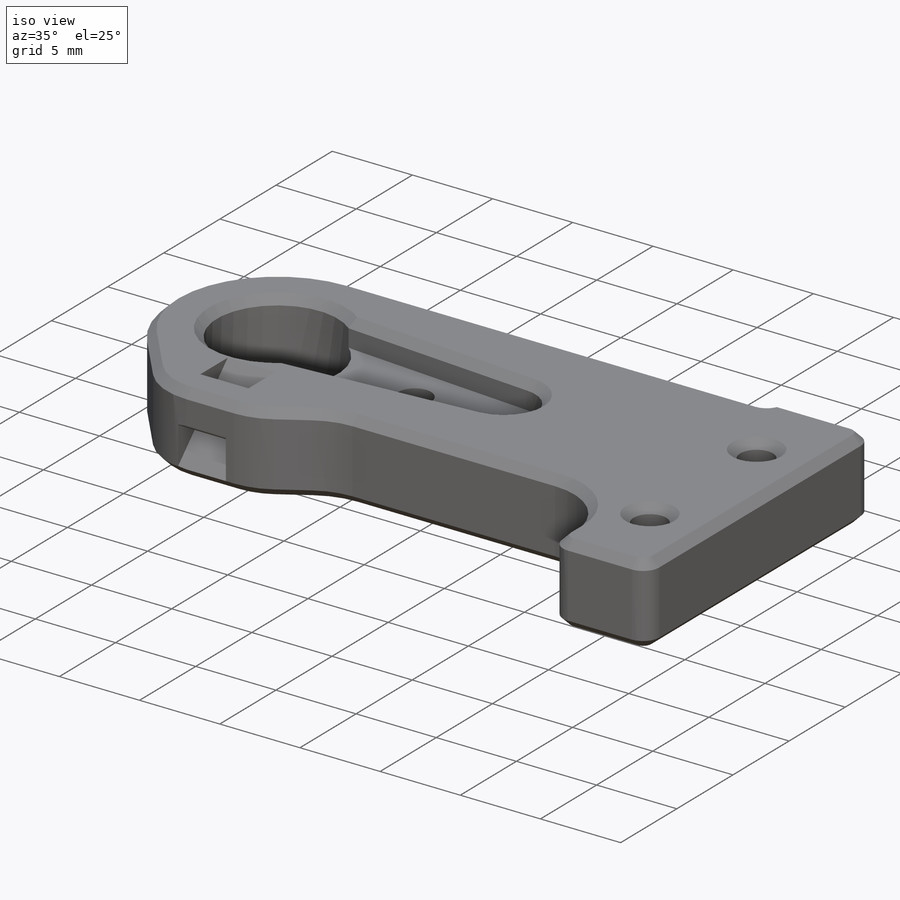
[diagram: iso view]
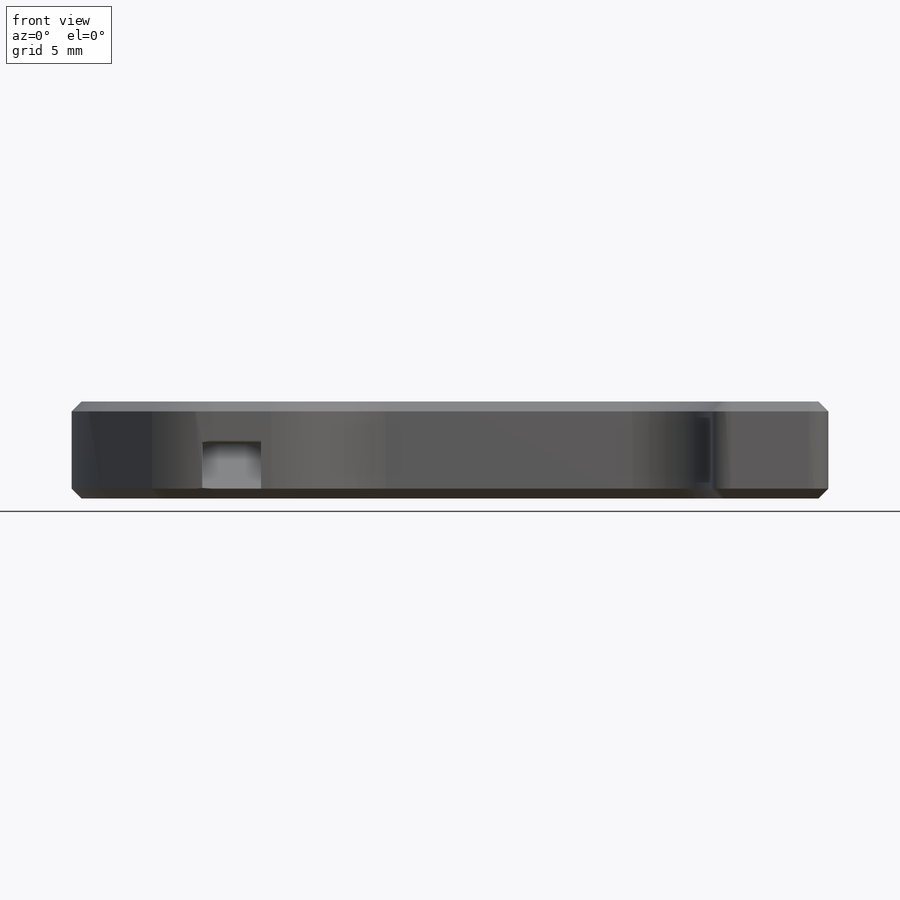
[diagram: front view]
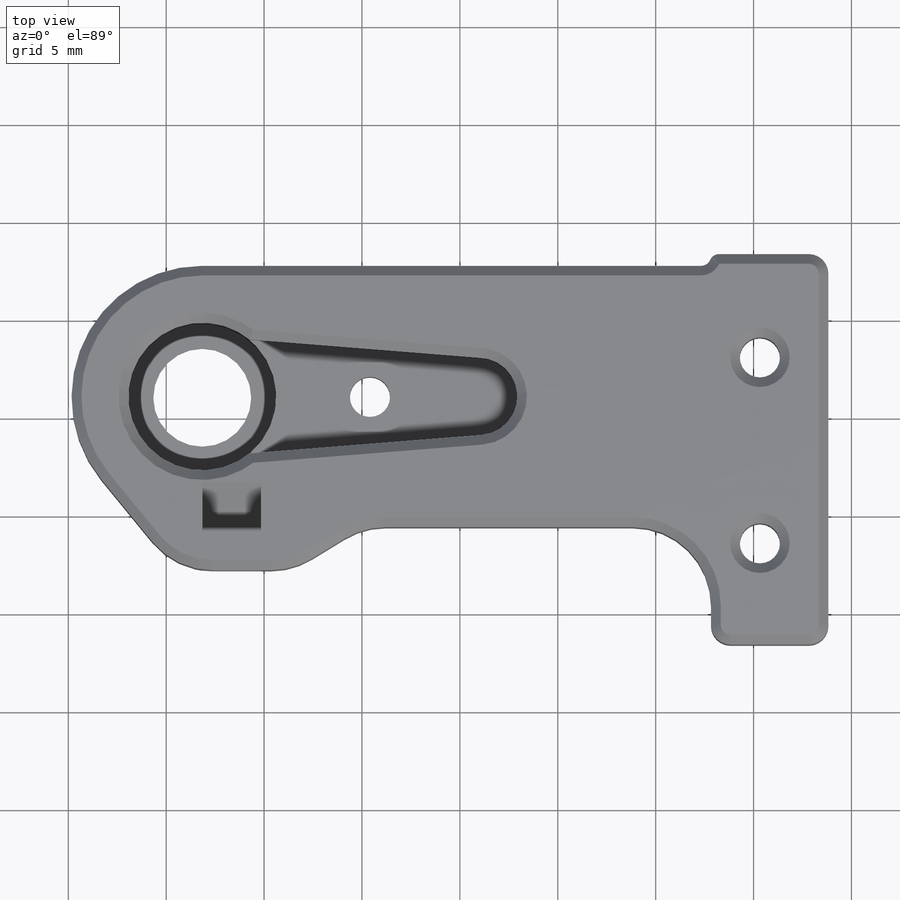
[diagram: top view]
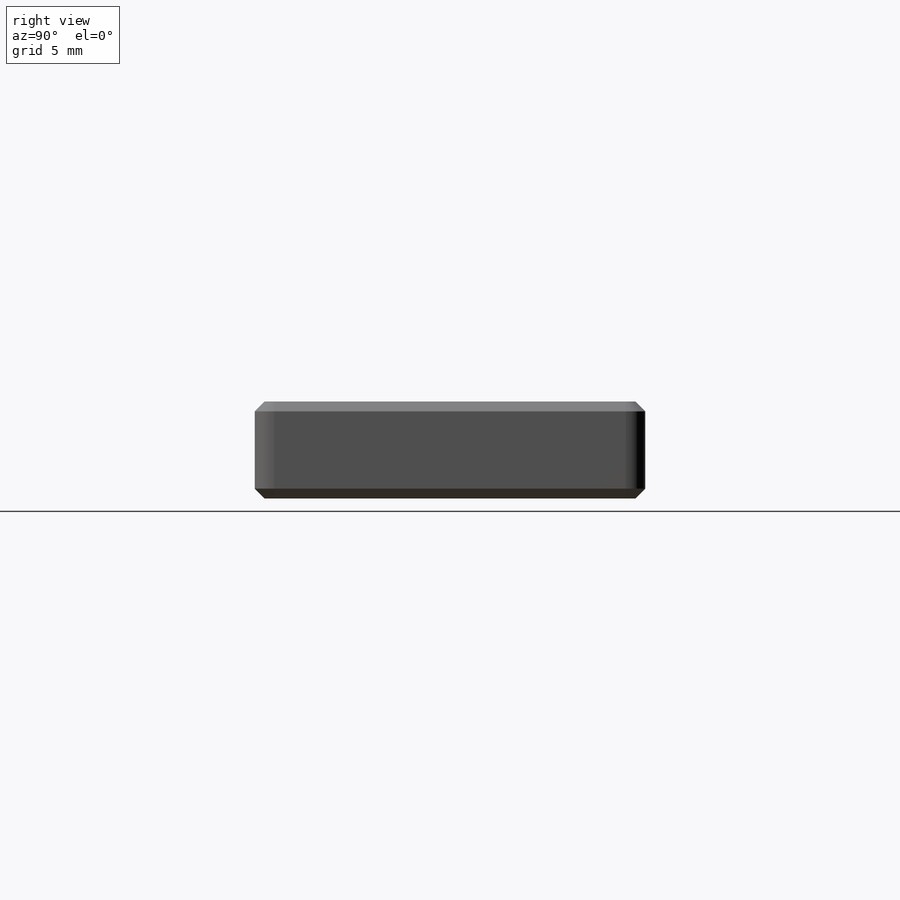
[diagram: right view]
SOLIDWORKS PART (.sldprt)
format: sldprt  version: not decoded by parser v0  size: 450,048 bytes
history: native  units: mm
features: sketch x9, fillet x5, extrude x2, hole x2, material x1, cut_extrude x1, plane x1, chamfer x1 (+12 scaffold rows collapsed)
feature tree (34):
  scaffold x12  (default folders/planes/origin — collapsed)
  material  "Material <not specified>"
  sketch  "Sketch1"  dims[c1.D5=7.35mm c1.D2=16.0mm c1.D3=6.0mm c1.D4=6.0mm c2.D5=0.6mm c2.D1=3.0mm]
  extrude  "Body"  Depth=4.95mm
  sketch  "Sketch2"  dims[D1=0.1mm]
  cut_extrude  "Horn Arm Recess"  Depth=1.6mm
  sketch  "Sketch3"  dims[D1=4.12mm]
  sketch  "Sketch4"  dims[D1=5.0mm]
  hole  "Servo Shaft Hole"  [1 undecoded]
  sketch  "Sketch5"  dims[D1=2.05mm]
  hole  "Horn Anchor Hole"  [1 undecoded]
  sketch  "Sketch6"  dims[D2=2.05mm D3=2.05mm D1=2.5mm D4=9.5mm D5=7.5mm]
  sketch  "Sketch7"  dims[D1=3.0mm D2=2.0mm D3=0.25mm]
  plane  "Plane1"
  sketch  "Guide Sketch"  dims[c1.D1=2.0mm c2.D1=135.0deg]
  sketch  "Sketch9"  dims[c1.D1=2.2mm c1.D2=3.6mm c1.D3=10.75mm c1.D4=6.0mm c2.D3=~8.233532mm]
  extrude  "Cable Tie Body"  [1 undecoded]
  fillet  "Fillet1"  Radius=0.2mm
  fillet  "Fillet2"  Radius=1mm
  fillet  "Fillet3"  Radius=4mm
  fillet  "Fillet4"  Radius=0.5mm
  chamfer  "Chamfer1"  Distance=0.5mm Angle=45deg
  fillet  "Fillet5"  Radius=0.5mm
decode coverage: 17 of 20 modeling features carry decoded parameters
note: ~ marks probable driven/reference dimensions
note: 3 parameter values undecoded
summary: no parameter record found for 3 features
note: suppression state not decoded; provenance and decode notes live in map.json
